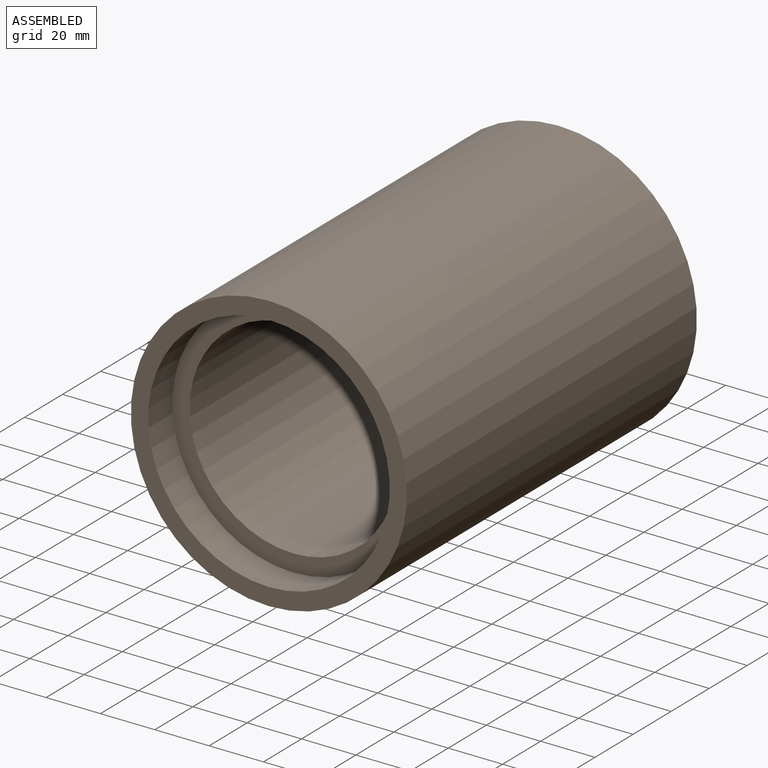
[diagram: assembled view]
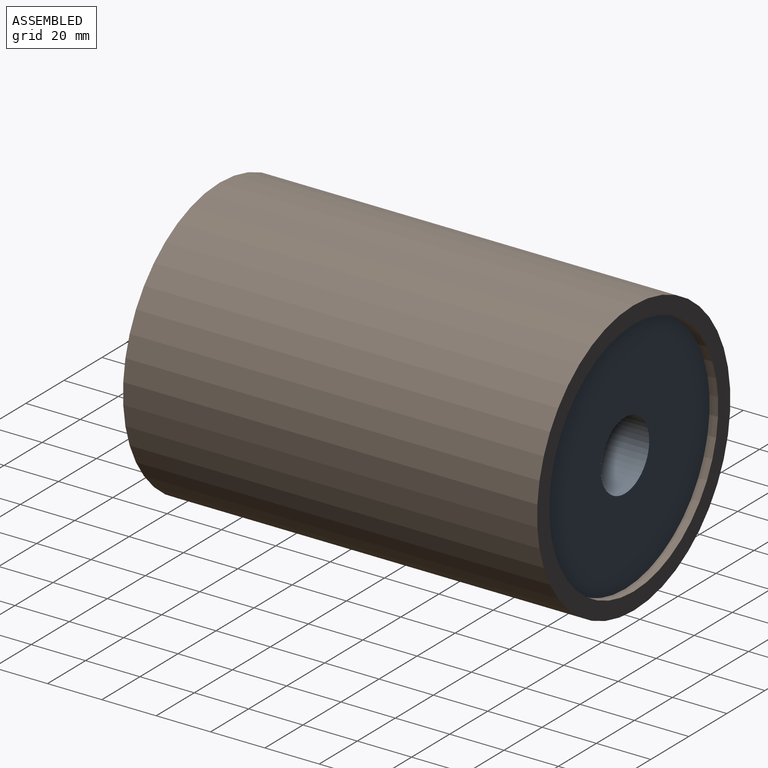
[diagram: assembled view, second angle]
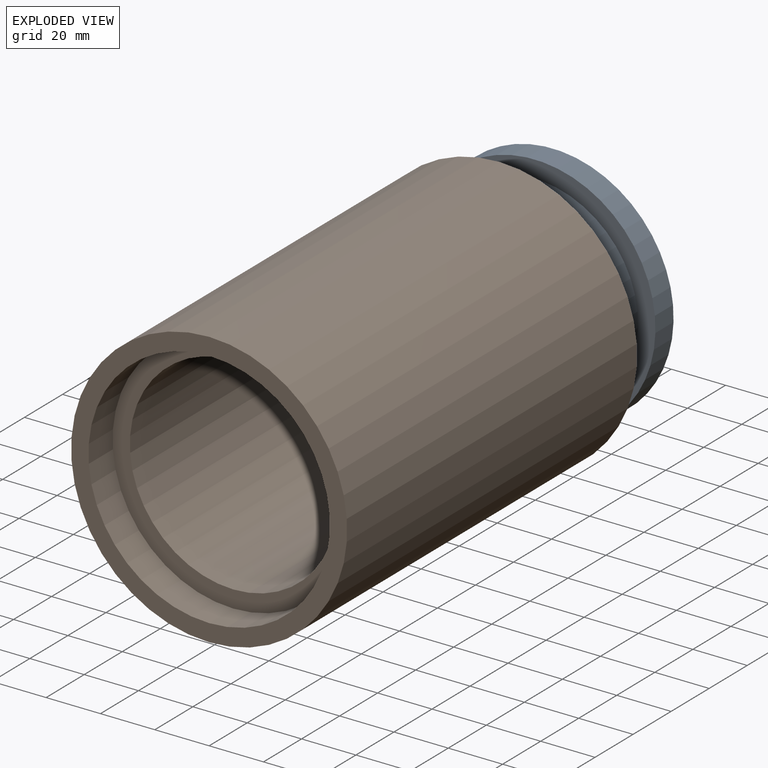
[diagram: exploded view]
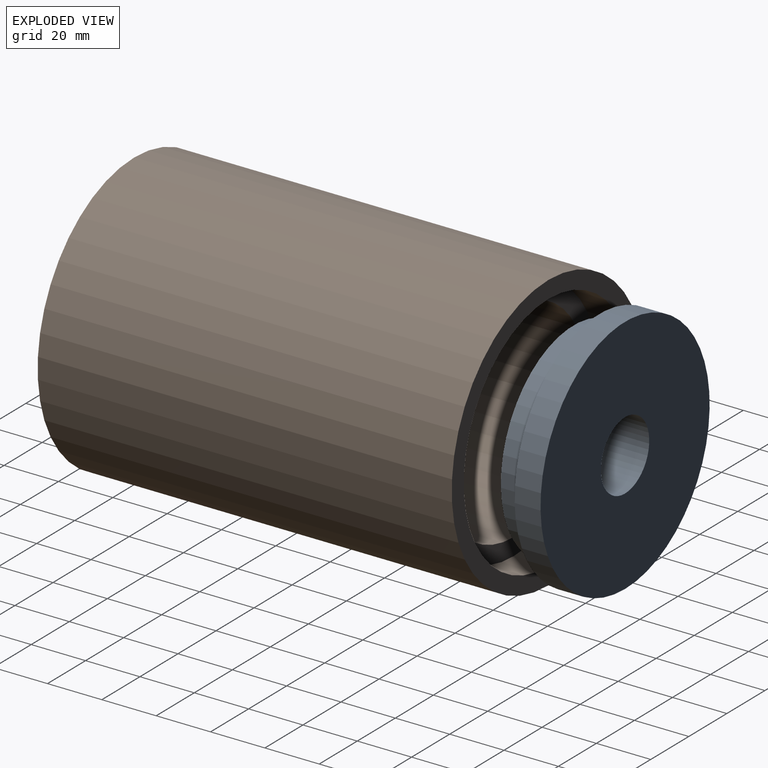
[diagram: exploded view, second angle]
ASSEMBLY  parts=2 mates=2
PART A: 6 faces, bbox 88.9x19.1x88.9 mm
  f0: cylinder r=12.7mm len=25.4mm, axis (0,1,0), area 1520.1mm2, adj f3,f5
  f1: cylinder r=44.45mm len=88.9mm, axis (0,1,0), area 2660.2mm2, adj f2,f3
  f2: plane 88.9x88.9mm, normal (0,-1,0), area 1646.8mm2, adj f1,f4
  f3: plane 88.9x88.9mm, normal (0,1,0), area 5700.5mm2, adj f0,f1
  f4: cylinder r=38.1mm len=76.2mm, axis (0,1,0), area 2280.2mm2, adj f2,f5
  f5: plane 76.2x76.2mm, normal (0,-1,0), area 4053.7mm2, adj f0,f4
PART B: 8 faces, bbox 101.6x152.4x101.6 mm
  f0: cylinder r=38.1mm len=127mm, axis (0,1,0), area 30402.4mm2, adj f5,f7
  f1: cylinder r=50.8mm len=152.4mm, axis (0,1,0), area 48643.9mm2, adj f2,f3
  f2: plane 101.6x101.6mm, normal (0,-1,0), area 1900.2mm2, adj f1,f4
  f3: plane 101.6x101.6mm, normal (0,1,0), area 1900.2mm2, adj f1,f6
  f4: cylinder r=44.45mm len=88.9mm, axis (0,-1,0), area 3547mm2, adj f2,f5
  f5: plane 88.9x88.9mm, normal (0,-1,0), area 1646.8mm2, adj f0,f4
  f6: cylinder r=44.45mm len=88.9mm, axis (0,1,0), area 3547mm2, adj f3,f7
  f7: plane 88.9x88.9mm, normal (0,1,0), area 1646.8mm2, adj f0,f6
PLACE A t=(-58.49,-24.39,20.74)mm
PLACE B t=(-58.49,-21.21,20.74)mm fixed
MATE planar A.f0 <-> B.f1  axis (0,-1,0) through (-58.49,-33.91,20.74)mm
MATE cylindrical A.f4 <-> B.f0  axis (0,-1,0) through (-58.49,-43.44,20.74)mm
